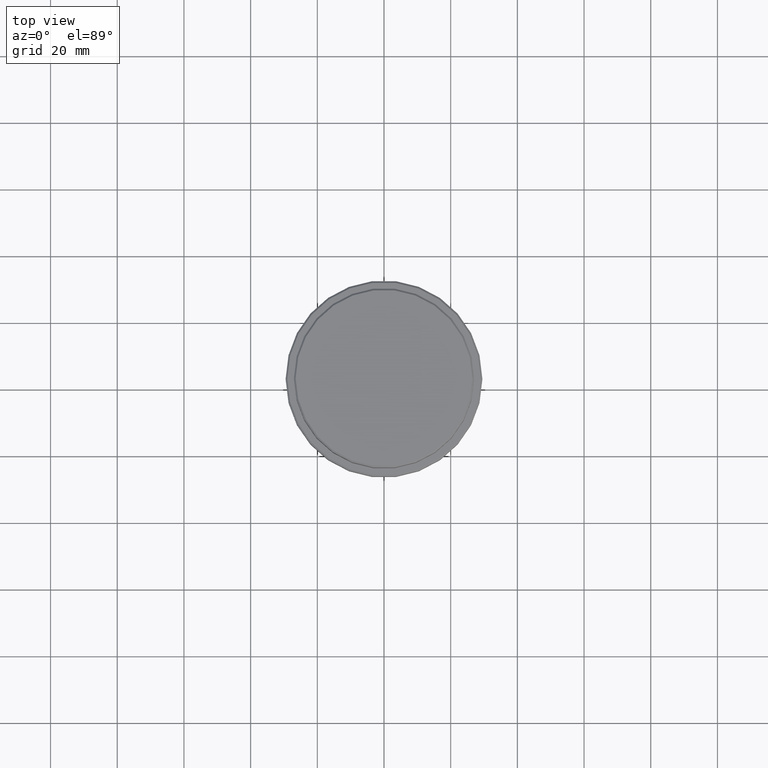
[diagram: clean part render]
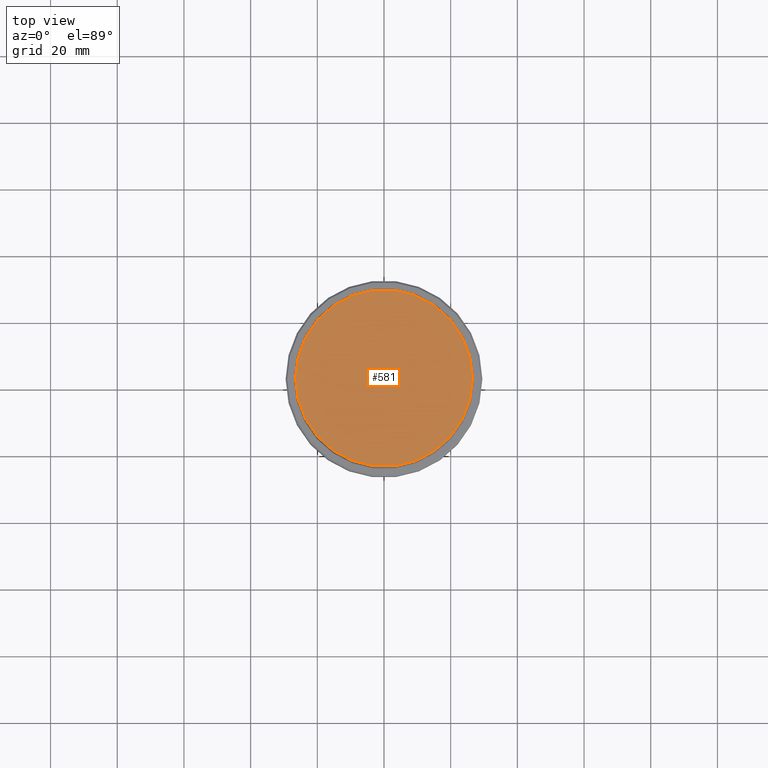
[diagram: same view with one face highlighted and labeled with its STEP entity id]
A machine part, top view. The second image highlights one B-rep face of the part: STEP entity #581.
In plain terms, the highlighted planar face has unit normal (0, -0, 1).
Its self-contained STEP definition (entity closure, byte-faithful):
#115 = AXIS2_PLACEMENT_3D ( 'NONE', #1105, #151, #993 ) ;
#151 = DIRECTION ( 'NONE',  ( -0.000000000000000000, -0.000000000000000000, 1.000000000000000000 ) ) ;
#183 = CIRCLE ( 'NONE', #115, 26.50000000000002487 ) ;
#197 = VERTEX_POINT ( 'NONE', #856 ) ;
#203 = EDGE_CURVE ( 'NONE', #197, #873, #311, .T. ) ;
#311 = CIRCLE ( 'NONE', #421, 26.50000000000002487 ) ;
#421 = AXIS2_PLACEMENT_3D ( 'NONE', #1078, #535, #1124 ) ;
#454 = PLANE ( 'NONE',  #1351 ) ;
#473 = ORIENTED_EDGE ( 'NONE', *, *, #203, .T. ) ;
#518 = EDGE_LOOP ( 'NONE', ( #473, #839 ) ) ;
#535 = DIRECTION ( 'NONE',  ( -0.000000000000000000, -0.000000000000000000, 1.000000000000000000 ) ) ;
#563 = FACE_OUTER_BOUND ( 'NONE', #518, .T. ) ;
#581 = ADVANCED_FACE ( 'NONE', ( #563 ), #454, .T. ) ;
#679 = EDGE_CURVE ( 'NONE', #873, #197, #183, .T. ) ;
#839 = ORIENTED_EDGE ( 'NONE', *, *, #679, .T. ) ;
#856 = CARTESIAN_POINT ( 'NONE',  ( -26.50000000000002487, 0.000000000000000000, 0.000000000000000000 ) ) ;
#867 = DIRECTION ( 'NONE',  ( 0.000000000000000000, -0.000000000000000000, 1.000000000000000000 ) ) ;
#873 = VERTEX_POINT ( 'NONE', #1318 ) ;
#897 = CARTESIAN_POINT ( 'NONE',  ( 0.000000000000000000, 0.000000000000000000, 0.000000000000000000 ) ) ;
#993 = DIRECTION ( 'NONE',  ( 1.000000000000000000, 0.000000000000000000, 0.000000000000000000 ) ) ;
#1078 = CARTESIAN_POINT ( 'NONE',  ( 0.000000000000000000, 0.000000000000000000, 0.000000000000000000 ) ) ;
#1105 = CARTESIAN_POINT ( 'NONE',  ( 0.000000000000000000, 0.000000000000000000, 0.000000000000000000 ) ) ;
#1124 = DIRECTION ( 'NONE',  ( 1.000000000000000000, 0.000000000000000000, 0.000000000000000000 ) ) ;
#1310 = DIRECTION ( 'NONE',  ( 1.000000000000000000, 0.000000000000000000, 0.000000000000000000 ) ) ;
#1318 = CARTESIAN_POINT ( 'NONE',  ( 26.50000000000002487, 3.275930187719171524E-15, 0.000000000000000000 ) ) ;
#1351 = AXIS2_PLACEMENT_3D ( 'NONE', #897, #867, #1310 ) ;